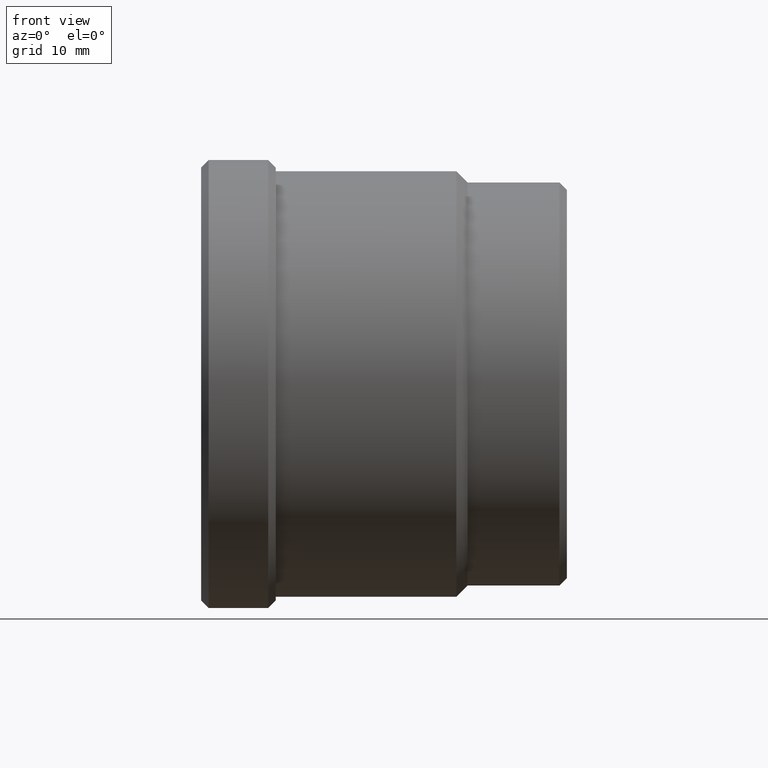
[diagram: clean part render]
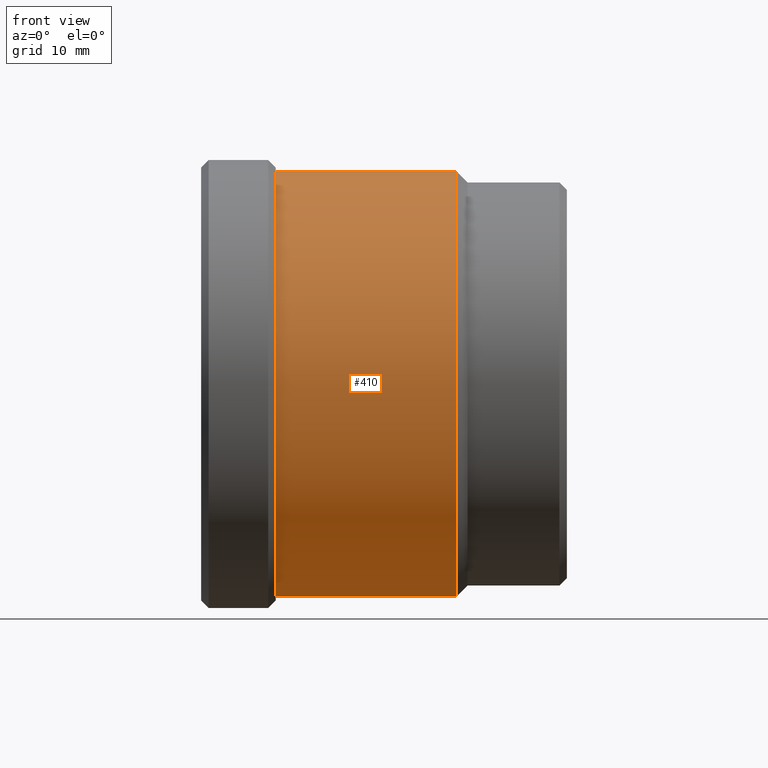
[diagram: same view with one face highlighted and labeled with its STEP entity id]
A machine part, front view. The second image highlights one B-rep face of the part: STEP entity #410.
In plain terms, the highlighted cylindrical surface (partial cylindrical patch) has radius 28.5 mm, axis along (-1, -0, -0).
Its self-contained STEP definition (entity closure, byte-faithful):
#20 = CARTESIAN_POINT ( 'NONE',  ( 34.20000000000000995, 0.000000000000000000, 0.000000000000000000 ) ) ;
#39 = DIRECTION ( 'NONE',  ( 0.000000000000000000, 0.000000000000000000, 1.000000000000000000 ) ) ;
#47 = VERTEX_POINT ( 'NONE', #459 ) ;
#51 = CARTESIAN_POINT ( 'NONE',  ( -255.8344310284800258, 0.000000000000000000, 0.000000000000000000 ) ) ;
#55 = VERTEX_POINT ( 'NONE', #315 ) ;
#59 = AXIS2_PLACEMENT_3D ( 'NONE', #51, #83, #226 ) ;
#72 = CIRCLE ( 'NONE', #243, 28.50000000000000000 ) ;
#78 = CARTESIAN_POINT ( 'NONE',  ( -255.8344310284800258, 0.000000000000000000, 28.50000000000000000 ) ) ;
#83 = DIRECTION ( 'NONE',  ( -1.000000000000000000, -0.000000000000000000, -0.000000000000000000 ) ) ;
#92 = VERTEX_POINT ( 'NONE', #137 ) ;
#99 = DIRECTION ( 'NONE',  ( -1.000000000000000000, -0.000000000000000000, -0.000000000000000000 ) ) ;
#105 = ORIENTED_EDGE ( 'NONE', *, *, #230, .F. ) ;
#115 = FACE_OUTER_BOUND ( 'NONE', #314, .T. ) ;
#118 = EDGE_CURVE ( 'NONE', #55, #468, #219, .T. ) ;
#133 = CIRCLE ( 'NONE', #266, 28.50000000000000000 ) ;
#137 = CARTESIAN_POINT ( 'NONE',  ( 10.00000000000000888, 3.490243377569956456E-15, -28.50000000000000000 ) ) ;
#142 = DIRECTION ( 'NONE',  ( -1.000000000000000000, -0.000000000000000000, -0.000000000000000000 ) ) ;
#162 = DIRECTION ( 'NONE',  ( 0.000000000000000000, 0.000000000000000000, 1.000000000000000000 ) ) ;
#202 = CARTESIAN_POINT ( 'NONE',  ( 10.00000000000000888, 0.000000000000000000, 28.50000000000000000 ) ) ;
#215 = ORIENTED_EDGE ( 'NONE', *, *, #448, .T. ) ;
#219 = LINE ( 'NONE', #78, #431 ) ;
#226 = DIRECTION ( 'NONE',  ( 0.000000000000000000, 0.000000000000000000, 1.000000000000000000 ) ) ;
#230 = EDGE_CURVE ( 'NONE', #92, #468, #72, .T. ) ;
#243 = AXIS2_PLACEMENT_3D ( 'NONE', #436, #432, #39 ) ;
#266 = AXIS2_PLACEMENT_3D ( 'NONE', #20, #99, #162 ) ;
#284 = EDGE_CURVE ( 'NONE', #47, #92, #415, .T. ) ;
#301 = CARTESIAN_POINT ( 'NONE',  ( -255.8344310284800258, 3.490243377569956456E-15, -28.50000000000000000 ) ) ;
#314 = EDGE_LOOP ( 'NONE', ( #372, #215, #397, #105 ) ) ;
#315 = CARTESIAN_POINT ( 'NONE',  ( 34.20000000000000995, 0.000000000000000000, 28.50000000000000000 ) ) ;
#343 = DIRECTION ( 'NONE',  ( -1.000000000000000000, -0.000000000000000000, -0.000000000000000000 ) ) ;
#362 = VECTOR ( 'NONE', #343, 1000.000000000000000 ) ;
#372 = ORIENTED_EDGE ( 'NONE', *, *, #284, .F. ) ;
#397 = ORIENTED_EDGE ( 'NONE', *, *, #118, .T. ) ;
#406 = CYLINDRICAL_SURFACE ( 'NONE', #59, 28.50000000000000000 ) ;
#410 = ADVANCED_FACE ( 'NONE', ( #115 ), #406, .T. ) ;
#415 = LINE ( 'NONE', #301, #362 ) ;
#431 = VECTOR ( 'NONE', #142, 1000.000000000000000 ) ;
#432 = DIRECTION ( 'NONE',  ( -1.000000000000000000, -0.000000000000000000, -0.000000000000000000 ) ) ;
#436 = CARTESIAN_POINT ( 'NONE',  ( 10.00000000000000888, 0.000000000000000000, 0.000000000000000000 ) ) ;
#448 = EDGE_CURVE ( 'NONE', #47, #55, #133, .T. ) ;
#459 = CARTESIAN_POINT ( 'NONE',  ( 34.20000000000000995, 3.490243377569956456E-15, -28.50000000000000000 ) ) ;
#468 = VERTEX_POINT ( 'NONE', #202 ) ;